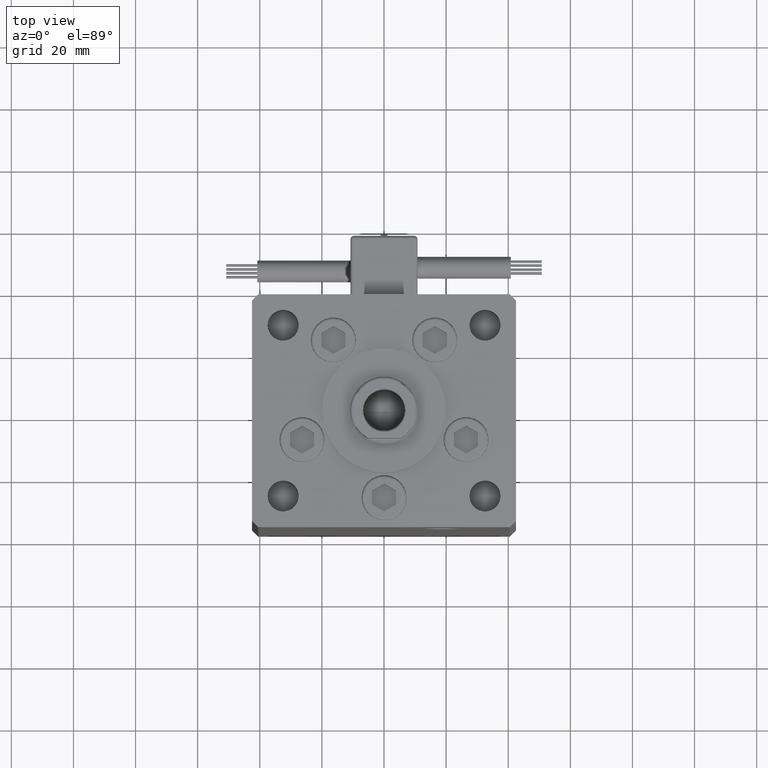
[diagram: clean part render]
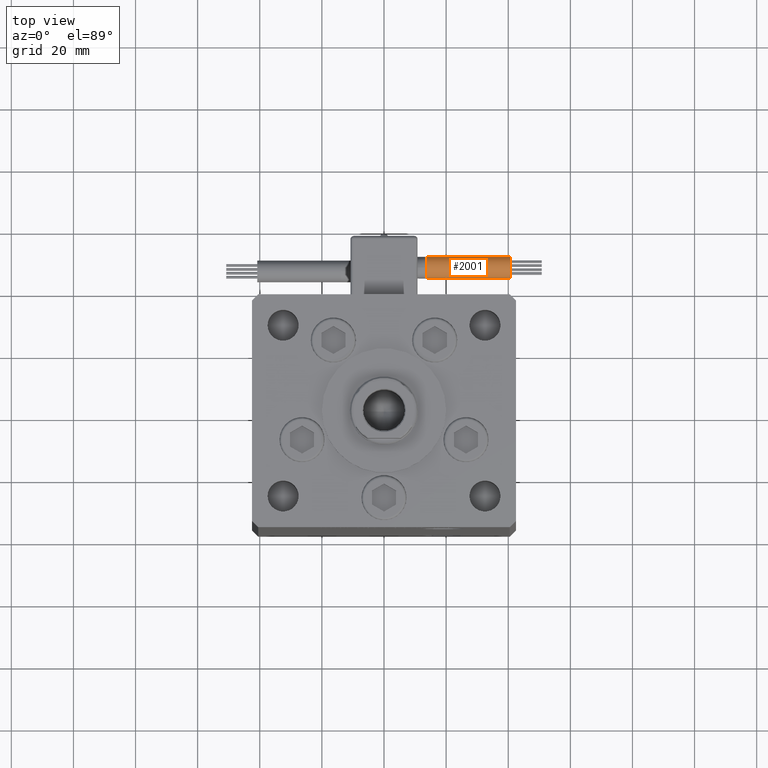
[diagram: same view with one face highlighted and labeled with its STEP entity id]
A machine part, top view. The second image highlights one B-rep face of the part: STEP entity #2001.
In plain terms, the highlighted cylindrical surface (edge-blend (fillet) strip) has radius 3.5 mm, axis along (1, -0, 0).
Its self-contained STEP definition (entity closure, byte-faithful):
#2001 = ADVANCED_FACE ( 'NONE', ( #19003 ), #18192, .T. ) ;
#2471 = CARTESIAN_POINT ( 'NONE',  ( 13.79999999999999716, 38.50000000000000000, -65.00000000000000000 ) ) ;
#3374 = CIRCLE ( 'NONE', #22979, 3.500000000000003109 ) ;
#4207 = VECTOR ( 'NONE', #44612, 1000.000000000000000 ) ;
#5621 = DIRECTION ( 'NONE',  ( -4.956352788505158337E-16, -1.000000000000000000, 0.000000000000000000 ) ) ;
#6941 = LINE ( 'NONE', #2471, #4207 ) ;
#7717 = DIRECTION ( 'NONE',  ( 0.000000000000000000, 0.000000000000000000, -1.000000000000000000 ) ) ;
#9395 = CARTESIAN_POINT ( 'NONE',  ( 13.79999999999999893, 42.00000000000000000, -65.00000000000000000 ) ) ;
#9547 = DIRECTION ( 'NONE',  ( 1.000000000000000000, -2.599999999999999847E-16, 2.220446049250000002E-16 ) ) ;
#13106 = ORIENTED_EDGE ( 'NONE', *, *, #45096, .T. ) ;
#17545 = DIRECTION ( 'NONE',  ( 0.000000000000000000, 0.000000000000000000, -1.000000000000000000 ) ) ;
#18192 = CYLINDRICAL_SURFACE ( 'NONE', #35726, 3.500000000000003109 ) ;
#18648 = EDGE_LOOP ( 'NONE', ( #43745, #23131, #13106, #50255, #38475 ) ) ;
#19003 = FACE_OUTER_BOUND ( 'NONE', #18648, .T. ) ;
#20545 = DIRECTION ( 'NONE',  ( 1.000000000000000000, 0.000000000000000000, 2.220446049250000002E-16 ) ) ;
#21376 = CIRCLE ( 'NONE', #33845, 3.500000000000003109 ) ;
#22979 = AXIS2_PLACEMENT_3D ( 'NONE', #36998, #20545, #7717 ) ;
#23131 = ORIENTED_EDGE ( 'NONE', *, *, #40776, .T. ) ;
#26068 = CARTESIAN_POINT ( 'NONE',  ( 13.80000000000000071, 45.50000000000000711, -65.00000000000000000 ) ) ;
#26122 = VERTEX_POINT ( 'NONE', #40906 ) ;
#29891 = CARTESIAN_POINT ( 'NONE',  ( 40.80000000000000426, 38.50000000000000000, -65.00000000000000000 ) ) ;
#30112 = AXIS2_PLACEMENT_3D ( 'NONE', #47126, #46576, #17545 ) ;
#32668 = CARTESIAN_POINT ( 'NONE',  ( 13.79999999999999893, 41.99999999999999289, -61.50000000000000000 ) ) ;
#33845 = AXIS2_PLACEMENT_3D ( 'NONE', #9395, #47068, #47907 ) ;
#35340 = EDGE_CURVE ( 'NONE', #42759, #53353, #44368, .T. ) ;
#35726 = AXIS2_PLACEMENT_3D ( 'NONE', #48876, #9547, #5621 ) ;
#36057 = EDGE_CURVE ( 'NONE', #26122, #42759, #47283, .T. ) ;
#36998 = CARTESIAN_POINT ( 'NONE',  ( 13.79999999999999893, 42.00000000000000000, -65.00000000000000000 ) ) ;
#37669 = EDGE_CURVE ( 'NONE', #41331, #53353, #6941, .T. ) ;
#38475 = ORIENTED_EDGE ( 'NONE', *, *, #35340, .F. ) ;
#38895 = DIRECTION ( 'NONE',  ( 1.000000000000000000, -2.599999999999999847E-16, 2.220446049250000002E-16 ) ) ;
#40776 = EDGE_CURVE ( 'NONE', #26122, #41749, #3374, .T. ) ;
#40906 = CARTESIAN_POINT ( 'NONE',  ( 13.79999999999999893, 45.50000000000000711, -65.00000000000000000 ) ) ;
#41331 = VERTEX_POINT ( 'NONE', #47297 ) ;
#41749 = VERTEX_POINT ( 'NONE', #32668 ) ;
#42759 = VERTEX_POINT ( 'NONE', #52215 ) ;
#43745 = ORIENTED_EDGE ( 'NONE', *, *, #36057, .F. ) ;
#44368 = CIRCLE ( 'NONE', #30112, 3.500000000000003109 ) ;
#44612 = DIRECTION ( 'NONE',  ( 1.000000000000000000, -2.599999999999999847E-16, 2.220446049250000002E-16 ) ) ;
#45096 = EDGE_CURVE ( 'NONE', #41749, #41331, #21376, .T. ) ;
#46576 = DIRECTION ( 'NONE',  ( 1.000000000000000000, 0.000000000000000000, 2.220446049250000002E-16 ) ) ;
#47068 = DIRECTION ( 'NONE',  ( 1.000000000000000000, 0.000000000000000000, 2.220446049250000002E-16 ) ) ;
#47126 = CARTESIAN_POINT ( 'NONE',  ( 40.80000000000000426, 42.00000000000000000, -65.00000000000000000 ) ) ;
#47283 = LINE ( 'NONE', #26068, #50596 ) ;
#47297 = CARTESIAN_POINT ( 'NONE',  ( 13.79999999999999893, 38.50000000000000000, -65.00000000000000000 ) ) ;
#47907 = DIRECTION ( 'NONE',  ( 0.000000000000000000, 0.000000000000000000, -1.000000000000000000 ) ) ;
#48876 = CARTESIAN_POINT ( 'NONE',  ( 13.79999999999999893, 42.00000000000000000, -65.00000000000000000 ) ) ;
#50255 = ORIENTED_EDGE ( 'NONE', *, *, #37669, .T. ) ;
#50596 = VECTOR ( 'NONE', #38895, 1000.000000000000000 ) ;
#52215 = CARTESIAN_POINT ( 'NONE',  ( 40.80000000000000426, 45.50000000000000711, -65.00000000000000000 ) ) ;
#53353 = VERTEX_POINT ( 'NONE', #29891 ) ;